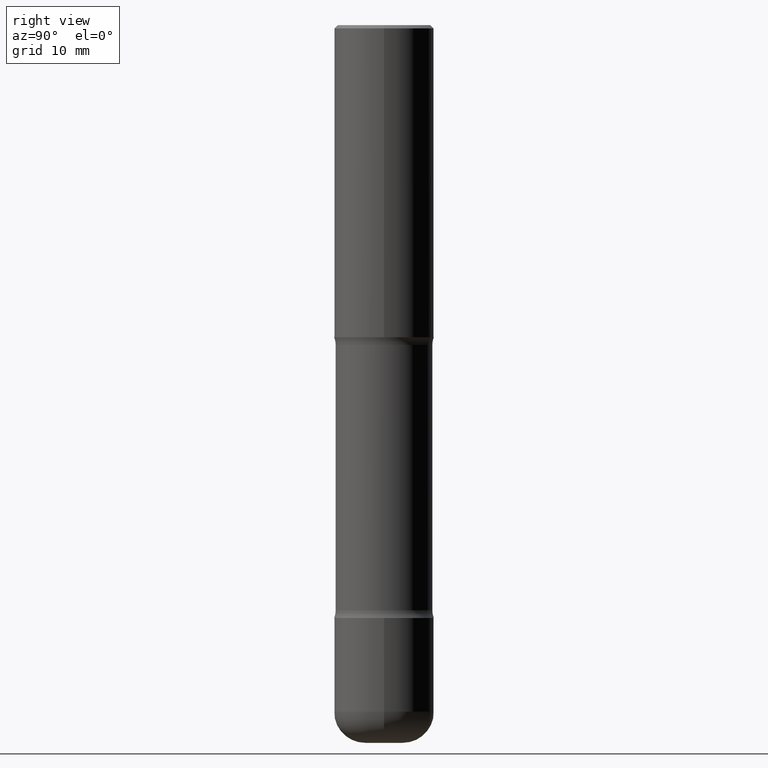
[diagram: clean part render]
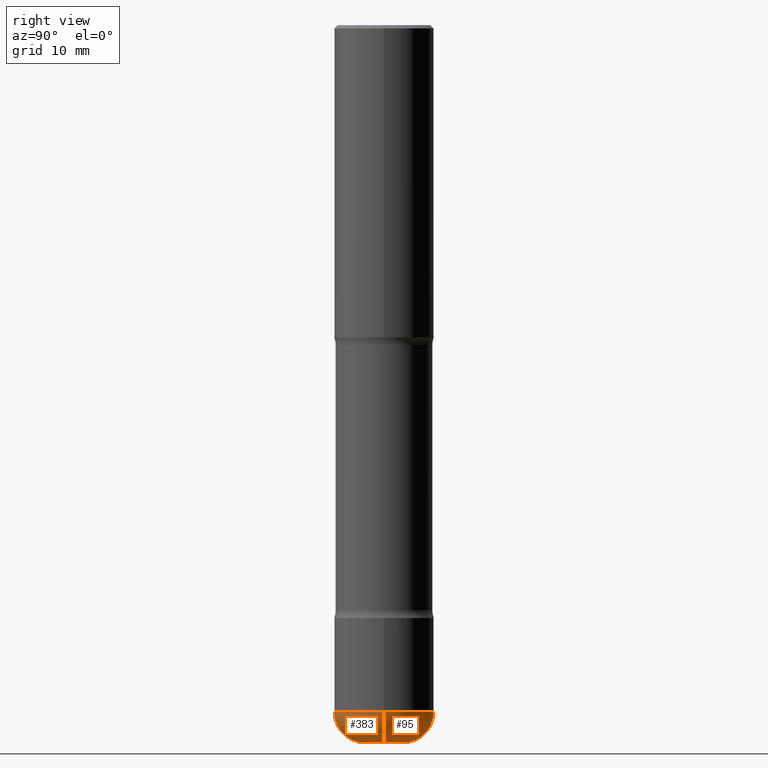
[diagram: same view with one multi-face feature highlighted, each face labeled with its STEP entity id]
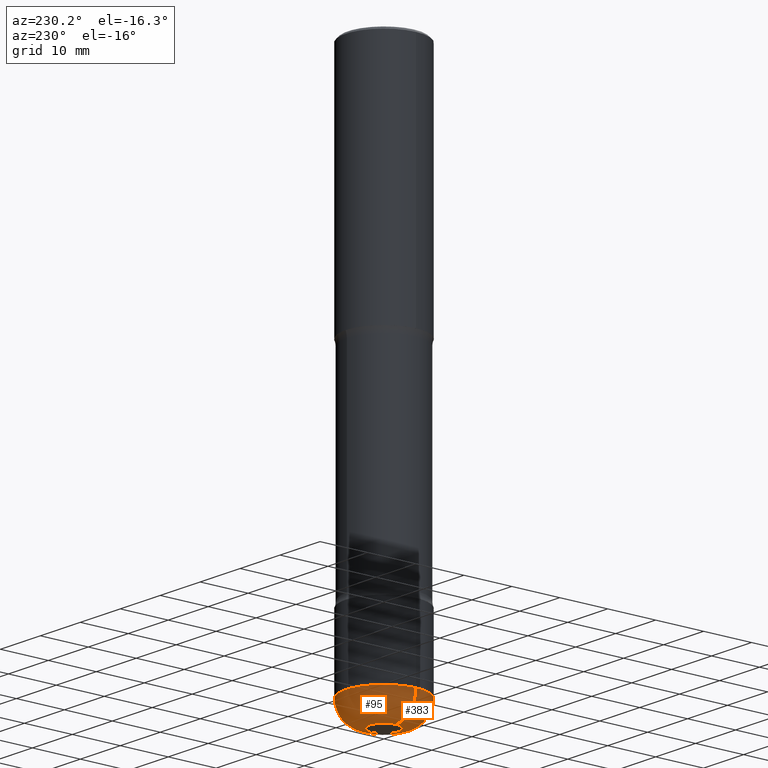
[diagram: same view with one multi-face feature highlighted, each face labeled with its STEP entity id]
A machine part, right view. The highlighted faces form ONE feature: a constant-radius fillet chain: 2 tangent blend faces with common blend radius 5.0013 mm. The faces share edges in the B-rep.
A second angle (auxiliary view) of the same feature is appended — it is thin or edge-on in the first view.
Their STEP definitions:
[1] entity #383 (Torus):
#44 = AXIS2_PLACEMENT_3D ( 'NONE', #444, #368, #540 ) ;
#62 = DIRECTION ( 'NONE',  ( 7.105427357601001859E-15, 1.000000000000000000, -3.491481338843145583E-15 ) ) ;
#86 = DIRECTION ( 'NONE',  ( 1.000000000000000000, -6.982962677686263555E-15, 0.000000000000000000 ) ) ;
#123 = EDGE_CURVE ( 'NONE', #134, #541, #344, .T. ) ;
#134 = VERTEX_POINT ( 'NONE', #238 ) ;
#137 = CARTESIAN_POINT ( 'NONE',  ( 1.107210456688382522E-28, -1.580803090974622705E-14, -4.527600000000000513 ) ) ;
#138 = AXIS2_PLACEMENT_3D ( 'NONE', #148, #319, #410 ) ;
#140 = CARTESIAN_POINT ( 'NONE',  ( -0.1180500000000003630, -1.392596954901650053E-14, -4.527600000000000513 ) ) ;
#148 = CARTESIAN_POINT ( 'NONE',  ( 0.1180500000000003352, -1.594489697822887924E-14, -4.330700000000000216 ) ) ;
#151 = AXIS2_PLACEMENT_3D ( 'NONE', #419, #203, #86 ) ;
#167 = EDGE_CURVE ( 'NONE', #487, #277, #181, .T. ) ;
#181 = CIRCLE ( 'NONE', #350, 0.1180500000000003630 ) ;
#182 = ORIENTED_EDGE ( 'NONE', *, *, #377, .T. ) ;
#195 = CARTESIAN_POINT ( 'NONE',  ( -0.1180500000000003352, -1.428176253456320999E-14, -4.330700000000000216 ) ) ;
#203 = DIRECTION ( 'NONE',  ( -2.445468806185136597E-29, 3.491481338843145583E-15, 1.000000000000000000 ) ) ;
#213 = AXIS2_PLACEMENT_3D ( 'NONE', #195, #62, #484 ) ;
#220 = CIRCLE ( 'NONE', #213, 0.1969000000000001027 ) ;
#238 = CARTESIAN_POINT ( 'NONE',  ( -0.3149500000000003408, -1.288270388785157535E-14, -4.330700000000000216 ) ) ;
#277 = VERTEX_POINT ( 'NONE', #396 ) ;
#282 = TOROIDAL_SURFACE ( 'NONE', #44, 0.1180500000000003352, 0.1969000000000001305 ) ;
#319 = DIRECTION ( 'NONE',  ( -6.982962677686266711E-15, -1.000000000000000000, 3.491481338843145583E-15 ) ) ;
#344 = CIRCLE ( 'NONE', #151, 0.3149500000000002853 ) ;
#350 = AXIS2_PLACEMENT_3D ( 'NONE', #137, #523, #353 ) ;
#353 = DIRECTION ( 'NONE',  ( 1.000000000000000000, -6.982962677686273810E-15, 0.000000000000000000 ) ) ;
#362 = ORIENTED_EDGE ( 'NONE', *, *, #123, .F. ) ;
#368 = DIRECTION ( 'NONE',  ( -2.445468806185136597E-29, 3.491481338843145583E-15, 1.000000000000000000 ) ) ;
#371 = ORIENTED_EDGE ( 'NONE', *, *, #505, .F. ) ;
#374 = ORIENTED_EDGE ( 'NONE', *, *, #167, .T. ) ;
#377 = EDGE_CURVE ( 'NONE', #277, #541, #526, .T. ) ;
#383 = ADVANCED_FACE ( 'NONE', ( #493 ), #282, .T. ) ;
#396 = CARTESIAN_POINT ( 'NONE',  ( 0.1180500000000003630, -1.663236965384709338E-14, -4.527600000000000513 ) ) ;
#410 = DIRECTION ( 'NONE',  ( 1.000000000000000000, -6.982962677686270655E-15, 0.000000000000000000 ) ) ;
#419 = CARTESIAN_POINT ( 'NONE',  ( 1.059059175894597327E-28, -1.512055823412801291E-14, -4.330700000000000216 ) ) ;
#423 = CARTESIAN_POINT ( 'NONE',  ( 0.3149500000000003408, -1.731984232946530752E-14, -4.330700000000000216 ) ) ;
#444 = CARTESIAN_POINT ( 'NONE',  ( 1.059059175894597327E-28, -1.512055823412801291E-14, -4.330700000000000216 ) ) ;
#484 = DIRECTION ( 'NONE',  ( -1.000000000000000000, 7.105427357600998703E-15, 0.000000000000000000 ) ) ;
#487 = VERTEX_POINT ( 'NONE', #140 ) ;
#493 = FACE_OUTER_BOUND ( 'NONE', #501, .T. ) ;
#501 = EDGE_LOOP ( 'NONE', ( #371, #374, #182, #362 ) ) ;
#505 = EDGE_CURVE ( 'NONE', #487, #134, #220, .T. ) ;
#523 = DIRECTION ( 'NONE',  ( -2.445468806185136597E-29, 3.491481338843145583E-15, 1.000000000000000000 ) ) ;
#526 = CIRCLE ( 'NONE', #138, 0.1969000000000001027 ) ;
#540 = DIRECTION ( 'NONE',  ( 1.000000000000000000, -6.982962677686266711E-15, 4.883557194083112901E-29 ) ) ;
#541 = VERTEX_POINT ( 'NONE', #423 ) ;
[2] entity #95 (Torus):
#6 = ORIENTED_EDGE ( 'NONE', *, *, #505, .T. ) ;
#8 = TOROIDAL_SURFACE ( 'NONE', #331, 0.1180500000000003352, 0.1969000000000001305 ) ;
#50 = AXIS2_PLACEMENT_3D ( 'NONE', #340, #433, #495 ) ;
#62 = DIRECTION ( 'NONE',  ( 7.105427357601001859E-15, 1.000000000000000000, -3.491481338843145583E-15 ) ) ;
#91 = DIRECTION ( 'NONE',  ( 1.000000000000000000, -6.982962677686263555E-15, 0.000000000000000000 ) ) ;
#95 = ADVANCED_FACE ( 'NONE', ( #166 ), #8, .T. ) ;
#114 = ORIENTED_EDGE ( 'NONE', *, *, #377, .F. ) ;
#124 = AXIS2_PLACEMENT_3D ( 'NONE', #280, #504, #91 ) ;
#134 = VERTEX_POINT ( 'NONE', #238 ) ;
#138 = AXIS2_PLACEMENT_3D ( 'NONE', #148, #319, #410 ) ;
#140 = CARTESIAN_POINT ( 'NONE',  ( -0.1180500000000003630, -1.392596954901650053E-14, -4.527600000000000513 ) ) ;
#148 = CARTESIAN_POINT ( 'NONE',  ( 0.1180500000000003352, -1.594489697822887924E-14, -4.330700000000000216 ) ) ;
#166 = FACE_OUTER_BOUND ( 'NONE', #435, .T. ) ;
#195 = CARTESIAN_POINT ( 'NONE',  ( -0.1180500000000003352, -1.428176253456320999E-14, -4.330700000000000216 ) ) ;
#213 = AXIS2_PLACEMENT_3D ( 'NONE', #195, #62, #484 ) ;
#220 = CIRCLE ( 'NONE', #213, 0.1969000000000001027 ) ;
#237 = ORIENTED_EDGE ( 'NONE', *, *, #287, .F. ) ;
#238 = CARTESIAN_POINT ( 'NONE',  ( -0.3149500000000003408, -1.288270388785157535E-14, -4.330700000000000216 ) ) ;
#247 = DIRECTION ( 'NONE',  ( 1.000000000000000000, -6.982962677686266711E-15, 4.883557194083112901E-29 ) ) ;
#251 = EDGE_CURVE ( 'NONE', #277, #487, #492, .T. ) ;
#277 = VERTEX_POINT ( 'NONE', #396 ) ;
#280 = CARTESIAN_POINT ( 'NONE',  ( 1.059059175894597327E-28, -1.512055823412801291E-14, -4.330700000000000216 ) ) ;
#287 = EDGE_CURVE ( 'NONE', #541, #134, #369, .T. ) ;
#291 = CARTESIAN_POINT ( 'NONE',  ( 1.059059175894597327E-28, -1.512055823412801291E-14, -4.330700000000000216 ) ) ;
#319 = DIRECTION ( 'NONE',  ( -6.982962677686266711E-15, -1.000000000000000000, 3.491481338843145583E-15 ) ) ;
#331 = AXIS2_PLACEMENT_3D ( 'NONE', #291, #431, #247 ) ;
#340 = CARTESIAN_POINT ( 'NONE',  ( 1.107210456688382522E-28, -1.580803090974622705E-14, -4.527600000000000513 ) ) ;
#369 = CIRCLE ( 'NONE', #124, 0.3149500000000002853 ) ;
#377 = EDGE_CURVE ( 'NONE', #277, #541, #526, .T. ) ;
#393 = ORIENTED_EDGE ( 'NONE', *, *, #251, .T. ) ;
#396 = CARTESIAN_POINT ( 'NONE',  ( 0.1180500000000003630, -1.663236965384709338E-14, -4.527600000000000513 ) ) ;
#410 = DIRECTION ( 'NONE',  ( 1.000000000000000000, -6.982962677686270655E-15, 0.000000000000000000 ) ) ;
#423 = CARTESIAN_POINT ( 'NONE',  ( 0.3149500000000003408, -1.731984232946530752E-14, -4.330700000000000216 ) ) ;
#431 = DIRECTION ( 'NONE',  ( -2.445468806185136597E-29, 3.491481338843145583E-15, 1.000000000000000000 ) ) ;
#433 = DIRECTION ( 'NONE',  ( -2.445468806185136597E-29, 3.491481338843145583E-15, 1.000000000000000000 ) ) ;
#435 = EDGE_LOOP ( 'NONE', ( #393, #6, #237, #114 ) ) ;
#484 = DIRECTION ( 'NONE',  ( -1.000000000000000000, 7.105427357600998703E-15, 0.000000000000000000 ) ) ;
#487 = VERTEX_POINT ( 'NONE', #140 ) ;
#492 = CIRCLE ( 'NONE', #50, 0.1180500000000003630 ) ;
#495 = DIRECTION ( 'NONE',  ( 1.000000000000000000, -6.982962677686273810E-15, 0.000000000000000000 ) ) ;
#504 = DIRECTION ( 'NONE',  ( -2.445468806185136597E-29, 3.491481338843145583E-15, 1.000000000000000000 ) ) ;
#505 = EDGE_CURVE ( 'NONE', #487, #134, #220, .T. ) ;
#526 = CIRCLE ( 'NONE', #138, 0.1969000000000001027 ) ;
#541 = VERTEX_POINT ( 'NONE', #423 ) ;